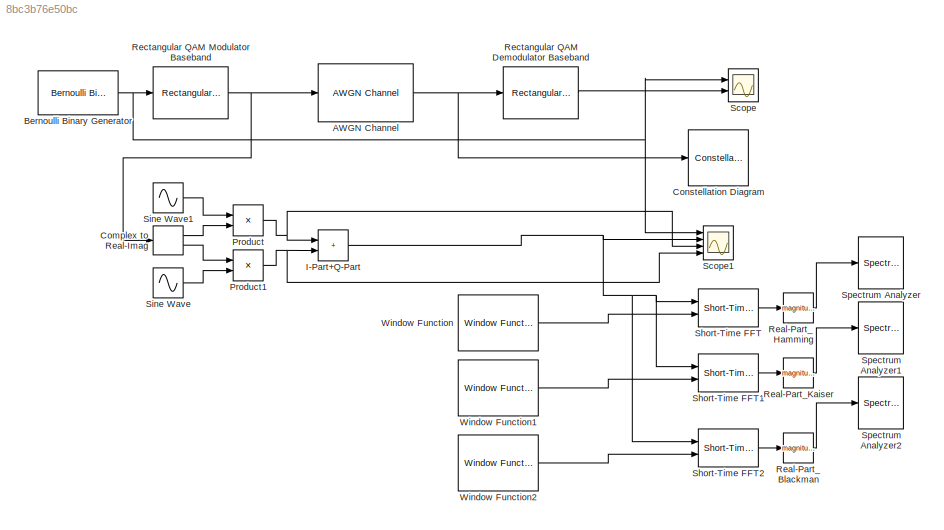
MODEL slx_8bc3b76e50bc
KIND model
CONFIG AbsTol = auto
CONFIG EnableMultiTasking = off
CONFIG FixedStep = auto
CONFIG MaxStep = auto
CONFIG MinStep = auto
CONFIG RelTol = 1e-3
CONFIG SampleTimeConstraint = Unconstrained
CONFIG SolverName = VariableStepAuto
CONFIG StartTime = 0.0
CONFIG StopTime = 10.0
BLOCK [Reference] AWGN Channel  REF=commchan3/AWGN
Channel
  Ports = [1, 1]
  SourceBlock = commchan3/AWGN\nChannel
  SourceProductBaseCode = CM
  SourceType = AWGN Channel
  UserDataPersistent = on
BLOCK [Reference] Bernoulli Binary Generator  REF=commrandsrc3/Bernoulli Binary
Generator
  Ports = [0, 1]
  SourceBlock = commrandsrc3/Bernoulli Binary\nGenerator
  SourceProductBaseCode = CM
  SourceType = Bernoulli Binary Generator
BLOCK [ComplexToRealImag] Complex to Real-Imag
  Ports = [1, 2]
BLOCK [ConstellationDiagram] Constellation Diagram
  Ports = [1]
  ScopeSpecificationString = comm.scopes.ConstellationDiagramBlockCfg('CurrentConfiguration', extmgr.ConfigurationSet(extmgr.Configuration('Core','General UI',true),extmgr.Configuration('Core','Source UI',true),extmgr.Configuration('Sources','WiredSimulink',true),extmgr.Configuration('Sources','SimulinkEvent',false),extmgr.Configuration('Sources','Simulink',false),extmgr.Configuration('Sources','File',false),extmgr.Configurat...<+2394ch>
BLOCK [Sum] I-Part+Q-Part
  IconShape = rectangular
  Ports = [2, 1]
BLOCK [Product] Product
  Ports = [2, 1]
BLOCK [Product] Product1
  Ports = [2, 1]
BLOCK [Math] Real-Part_Blackman
  Operator = magnitude^2
  OutputSignalType = real
  Ports = [1, 1]
BLOCK [Math] Real-Part_Hamming
  Operator = magnitude^2
  OutputSignalType = real
  Ports = [1, 1]
BLOCK [Math] Real-Part_Kaiser
  Operator = magnitude^2
  OutputSignalType = real
  Ports = [1, 1]
BLOCK [Reference] Rectangular QAM Demodulator Baseband  REF=commdigbbndam3/Rectangular QAM
Demodulator
Baseband
  Ports = [1, 1]
  SourceBlock = commdigbbndam3/Rectangular QAM\nDemodulator\nBaseband
  SourceProductBaseCode = CM
  SourceType = Rectangular QAM Demodulator Baseband
BLOCK [Reference] Rectangular QAM Modulator Baseband  REF=commdigbbndam3/Rectangular QAM
Modulator
Baseband
  Ports = [1, 1]
  SourceBlock = commdigbbndam3/Rectangular QAM\nModulator\nBaseband
  SourceProductBaseCode = CM
  SourceType = Rectangular QAM Modulator Baseband
BLOCK [Scope] Scope
  Floating = off
  NumInputPorts = 2
  Ports = [2]
  ScopeSpecificationString = Simulink.scopes.TimeScopeBlockCfg('CurrentConfiguration', extmgr.ConfigurationSet(extmgr.Configuration('Core','General UI',true),extmgr.Configuration('Core','Source UI',true),extmgr.Configuration('Sources','WiredSimulink',true),extmgr.Configuration('Visuals','Time Domain',true,'SerializedDisplays',{struct('MinYLimReal','-0.125','MaxYLimReal','1.125','YLabelReal','','MinYLimMag','0.00000','MaxYLimM...<+2382ch>
BLOCK [Scope] Scope1
  Floating = off
  NumInputPorts = 4
  Ports = [4]
  ScopeSpecificationString = Simulink.scopes.TimeScopeBlockCfg('CurrentConfiguration', extmgr.ConfigurationSet(extmgr.Configuration('Core','General UI',true),extmgr.Configuration('Core','Source UI',true),extmgr.Configuration('Sources','WiredSimulink',true,'DataLoggingVariableName','ScopeData1'),extmgr.Configuration('Visuals','Time Domain',true,'SerializedDisplays',{struct('MinYLimReal','-0.125','MaxYLimReal','1.125','YLabelRe...<+4129ch>
BLOCK [Reference] Short-Time FFT  REF=dspxfrm3/Short-Time FFT
  Ports = [2, 1]
  SourceBlock = dspxfrm3/Short-Time FFT
  SourceProductBaseCode = DS
  SourceType = Short-Time FFT
  UserDataPersistent = on
BLOCK [Reference] Short-Time FFT1  REF=dspxfrm3/Short-Time FFT
  Ports = [2, 1]
  SourceBlock = dspxfrm3/Short-Time FFT
  SourceProductBaseCode = DS
  SourceType = Short-Time FFT
  UserDataPersistent = on
BLOCK [Reference] Short-Time FFT2  REF=dspxfrm3/Short-Time FFT
  Ports = [2, 1]
  SourceBlock = dspxfrm3/Short-Time FFT
  SourceProductBaseCode = DS
  SourceType = Short-Time FFT
  UserDataPersistent = on
BLOCK [Sin] Sine Wave
  Amplitude = 10
  Frequency = 15079644736.463
  Phase = pi/2
  Ports = [0, 1]
  SampleTime = 0.01
BLOCK [Sin] Sine Wave1
  Amplitude = 10
  Frequency = 15079644736.463
  Ports = [0, 1]
  SampleTime = 0.01
BLOCK [SpectrumAnalyzer] Spectrum Analyzer
  IsFrequencyInputMode = 1
  Ports = [1]
  ScopeSpecificationString = spbscopes.SpectrumAnalyzerBlockCfg('CurrentConfiguration', extmgr.ConfigurationSet(extmgr.Configuration('Core','General UI',true),extmgr.Configuration('Core','Source UI',true),extmgr.Configuration('Sources','WiredSimulink',true),extmgr.Configuration('Sources','SimulinkEvent',false),extmgr.Configuration('Sources','Simulink',false),extmgr.Configuration('Sources','File',false),extmgr.Configuration('S...<+4430ch>
BLOCK [SpectrumAnalyzer] Spectrum Analyzer1
  IsFrequencyInputMode = 1
  Ports = [1]
  ScopeSpecificationString = spbscopes.SpectrumAnalyzerBlockCfg('CurrentConfiguration', extmgr.ConfigurationSet(extmgr.Configuration('Core','General UI',true),extmgr.Configuration('Core','Source UI',true),extmgr.Configuration('Sources','WiredSimulink',true),extmgr.Configuration('Sources','SimulinkEvent',false),extmgr.Configuration('Sources','Simulink',false),extmgr.Configuration('Sources','File',false),extmgr.Configuration('S...<+4381ch>
BLOCK [SpectrumAnalyzer] Spectrum Analyzer2
  IsFrequencyInputMode = 1
  Ports = [1]
  ScopeSpecificationString = spbscopes.SpectrumAnalyzerBlockCfg('CurrentConfiguration', extmgr.ConfigurationSet(extmgr.Configuration('Core','General UI',true),extmgr.Configuration('Core','Source UI',true),extmgr.Configuration('Sources','WiredSimulink',true),extmgr.Configuration('Sources','SimulinkEvent',false),extmgr.Configuration('Sources','Simulink',false),extmgr.Configuration('Sources','File',false),extmgr.Configuration('S...<+4380ch>
BLOCK [Reference] Window Function  REF=dspsigops/Window
Function
  Ports = [0, 1]
  SourceBlock = dspsigops/Window\nFunction
  SourceProductBaseCode = DS
  SourceType = Window Function
BLOCK [Reference] Window Function1  REF=dspsigops/Window
Function
  Ports = [0, 1]
  SourceBlock = dspsigops/Window\nFunction
  SourceProductBaseCode = DS
  SourceType = Window Function
BLOCK [Reference] Window Function2  REF=dspsigops/Window
Function
  Ports = [0, 1]
  SourceBlock = dspsigops/Window\nFunction
  SourceProductBaseCode = DS
  SourceType = Window Function
NET AWGN Channel:1 -> Constellation Diagram:1, Rectangular QAM Demodulator Baseband:1
NET Bernoulli Binary Generator:1 -> Rectangular QAM Modulator Baseband:1, Scope1:1, Scope:1
LINE Complex to Real-Imag:1 -> Product:2
LINE Complex to Real-Imag:2 -> Product1:1
NET I-Part+Q-Part:1 -> Scope1:2, Short-Time FFT1:1, Short-Time FFT2:1, Short-Time FFT:1
NET Product1:1 -> I-Part+Q-Part:2, Scope1:4
NET Product:1 -> I-Part+Q-Part:1, Scope1:3
LINE Real-Part_Blackman:1 -> Spectrum Analyzer2:1
LINE Real-Part_Hamming:1 -> Spectrum Analyzer:1
LINE Real-Part_Kaiser:1 -> Spectrum Analyzer1:1
LINE Rectangular QAM Demodulator Baseband:1 -> Scope:2
NET Rectangular QAM Modulator Baseband:1 -> AWGN Channel:1, Complex to Real-Imag:1
LINE Short-Time FFT1:1 -> Real-Part_Kaiser:1
LINE Short-Time FFT2:1 -> Real-Part_Blackman:1
LINE Short-Time FFT:1 -> Real-Part_Hamming:1
LINE Sine Wave1:1 -> Product:1
LINE Sine Wave:1 -> Product1:2
LINE Window Function1:1 -> Short-Time FFT1:2
LINE Window Function2:1 -> Short-Time FFT2:2
LINE Window Function:1 -> Short-Time FFT:2
note: NET lines group one-source signal fan-out (src -> all destinations, sorted); 1:1 wires keep LINE
